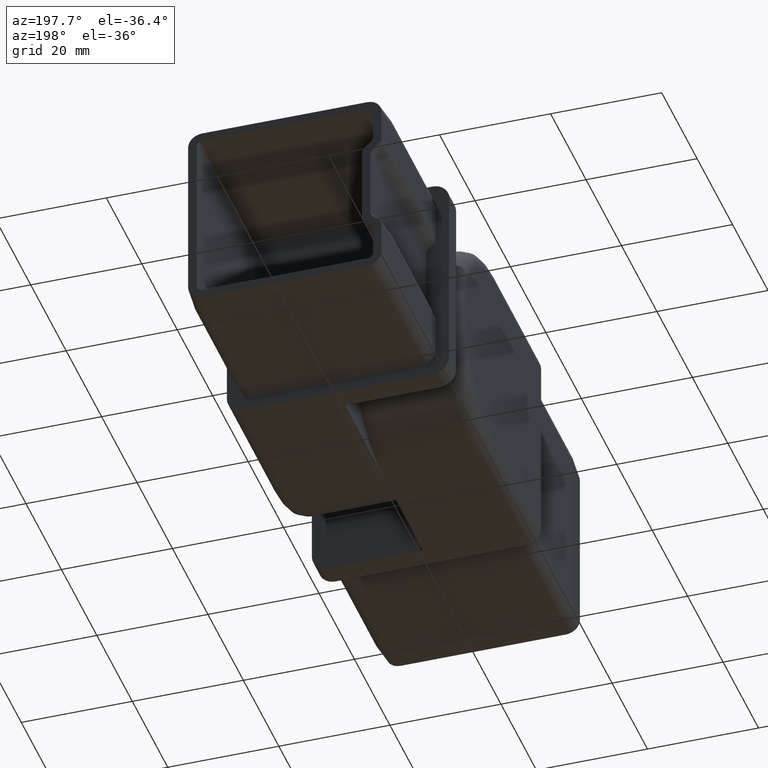
[diagram: clean part render]
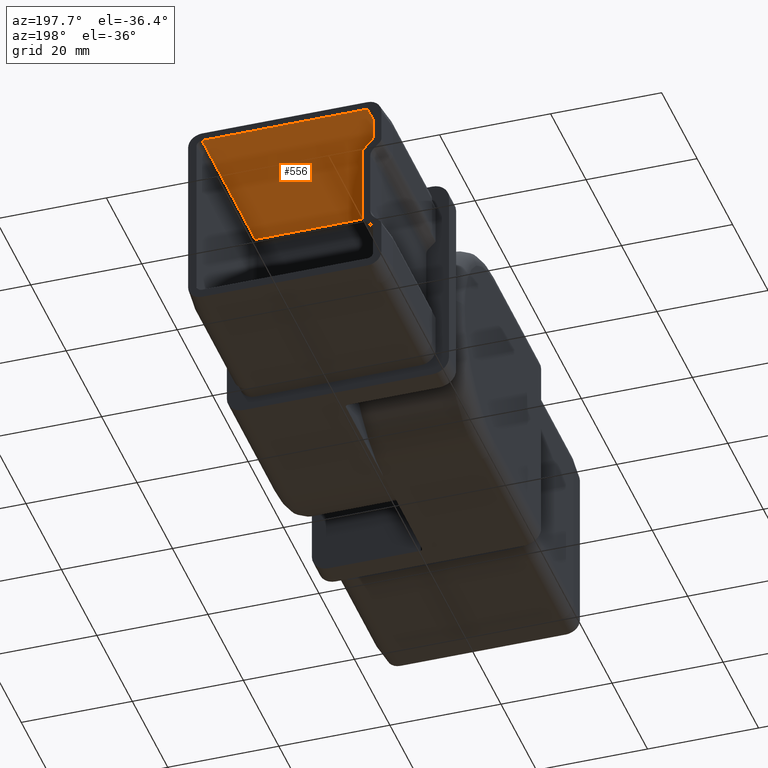
[diagram: same view with one face highlighted and labeled with its STEP entity id]
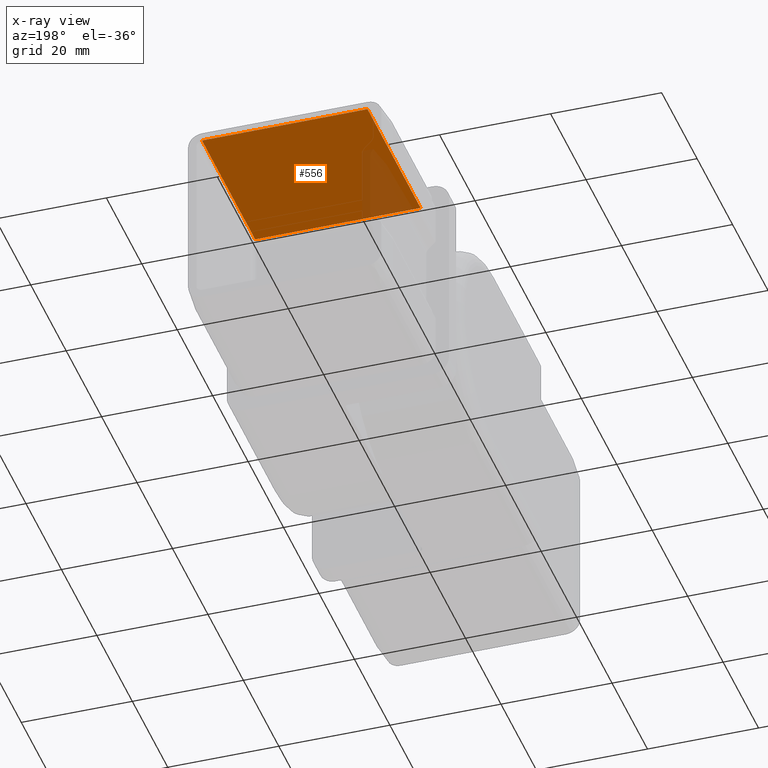
[diagram: x-ray of the same camera — body ghosted, the highlighted face saturated]
A machine part, auxiliary view. The second image highlights one B-rep face of the part: STEP entity #556.
The next image is the same camera in x-ray: the body ghosted, the highlighted face saturated — about 12% of this face is hidden behind the body in this view.
In plain terms, the highlighted planar face has unit normal (-0, -0, -1).
Its self-contained STEP definition (entity closure, byte-faithful):
#556 = ADVANCED_FACE ( 'NONE', ( #4469 ), #2082, .T. ) ;
#976 = VERTEX_POINT ( 'NONE', #11771 ) ;
#1506 = VERTEX_POINT ( 'NONE', #2063 ) ;
#1822 = DIRECTION ( 'NONE',  ( -2.948456652445599100E-033, 1.000000000000000000, 0.0000000000000000000 ) ) ;
#2063 = CARTESIAN_POINT ( 'NONE',  ( -14.90000000000000200, 0.0000000000000000000, 15.90000000000001500 ) ) ;
#2070 = LINE ( 'NONE', #10553, #11913 ) ;
#2082 = PLANE ( 'NONE',  #2548 ) ;
#2321 = DIRECTION ( 'NONE',  ( 1.000000000000000000, -4.728879276805615500E-032, 2.328487887217191400E-016 ) ) ;
#2548 = AXIS2_PLACEMENT_3D ( 'NONE', #16131, #6104, #7678 ) ;
#3566 = LINE ( 'NONE', #10836, #7945 ) ;
#3759 = VECTOR ( 'NONE', #1822, 1000.000000000000000 ) ;
#4469 = FACE_OUTER_BOUND ( 'NONE', #7612, .T. ) ;
#5151 = ORIENTED_EDGE ( 'NONE', *, *, #12264, .F. ) ;
#6104 = DIRECTION ( 'NONE',  ( 2.328487887217191400E-016, 0.0000000000000000000, -1.000000000000000000 ) ) ;
#6176 = DIRECTION ( 'NONE',  ( -1.000000000000000000, 4.728879276805615000E-032, -2.328487887217190900E-016 ) ) ;
#6275 = CARTESIAN_POINT ( 'NONE',  ( 14.89999999999999700, -30.00000000000000000, 15.89999999999999700 ) ) ;
#6672 = LINE ( 'NONE', #6275, #15487 ) ;
#7606 = CARTESIAN_POINT ( 'NONE',  ( -14.90000000000000200, -30.00000000000000000, 15.90000000000001500 ) ) ;
#7612 = EDGE_LOOP ( 'NONE', ( #17759, #13292, #5151, #8401 ) ) ;
#7678 = DIRECTION ( 'NONE',  ( -1.000000000000000000, 4.728879276805615500E-032, -2.328487887217191400E-016 ) ) ;
#7914 = EDGE_CURVE ( 'NONE', #8007, #1506, #14778, .T. ) ;
#7945 = VECTOR ( 'NONE', #2321, 1000.000000000000000 ) ;
#8007 = VERTEX_POINT ( 'NONE', #7606 ) ;
#8053 = CARTESIAN_POINT ( 'NONE',  ( 14.89999999999999700, -30.00000000000000000, 15.89999999999999700 ) ) ;
#8401 = ORIENTED_EDGE ( 'NONE', *, *, #13755, .T. ) ;
#8981 = CARTESIAN_POINT ( 'NONE',  ( -14.90000000000000200, -30.00000000000000000, 15.90000000000001500 ) ) ;
#10303 = DIRECTION ( 'NONE',  ( -2.948456652445599100E-033, 1.000000000000000000, 0.0000000000000000000 ) ) ;
#10553 = CARTESIAN_POINT ( 'NONE',  ( -1.734723475976807100E-015, -30.00000000000000000, 15.89999999999999300 ) ) ;
#10836 = CARTESIAN_POINT ( 'NONE',  ( 14.89999999999999700, 0.0000000000000000000, 15.89999999999999700 ) ) ;
#11771 = CARTESIAN_POINT ( 'NONE',  ( 14.89999999999999700, 0.0000000000000000000, 15.89999999999999700 ) ) ;
#11913 = VECTOR ( 'NONE', #6176, 1000.000000000000000 ) ;
#12264 = EDGE_CURVE ( 'NONE', #13985, #976, #6672, .T. ) ;
#13292 = ORIENTED_EDGE ( 'NONE', *, *, #14353, .T. ) ;
#13755 = EDGE_CURVE ( 'NONE', #13985, #8007, #2070, .T. ) ;
#13985 = VERTEX_POINT ( 'NONE', #8053 ) ;
#14353 = EDGE_CURVE ( 'NONE', #1506, #976, #3566, .T. ) ;
#14778 = LINE ( 'NONE', #8981, #3759 ) ;
#15487 = VECTOR ( 'NONE', #10303, 1000.000000000000000 ) ;
#16131 = CARTESIAN_POINT ( 'NONE',  ( -1.734723475976807100E-015, -30.00000000000000000, 15.89999999999999300 ) ) ;
#17759 = ORIENTED_EDGE ( 'NONE', *, *, #7914, .T. ) ;